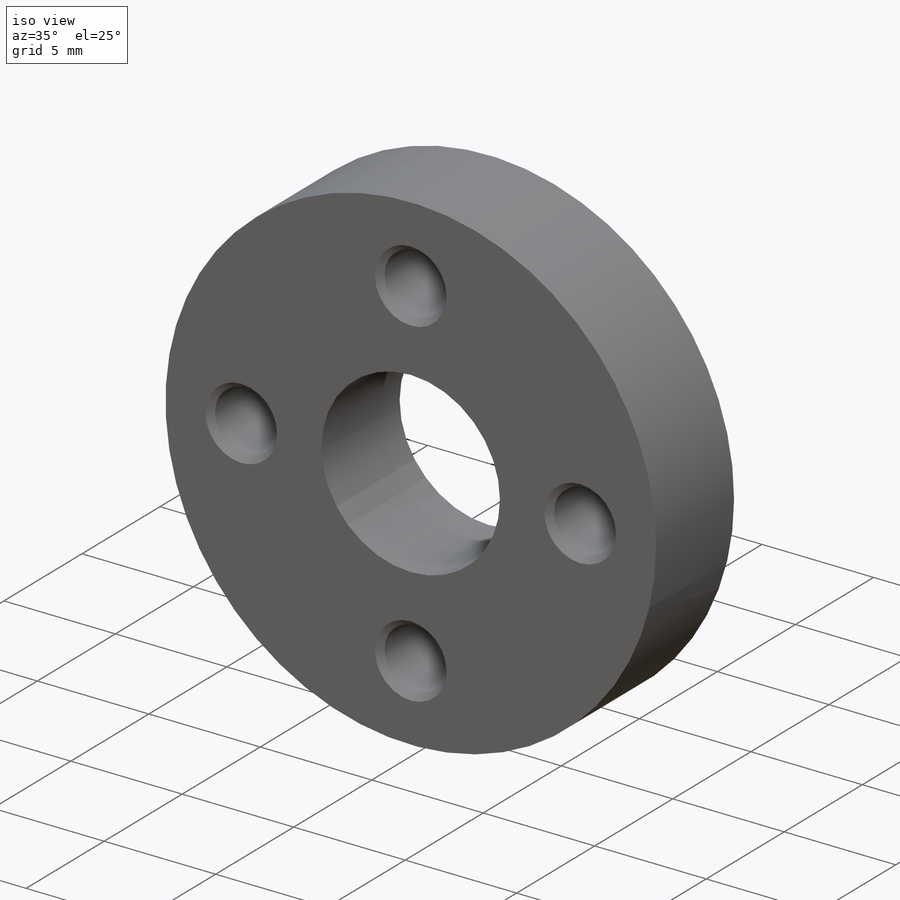
[diagram: iso view]
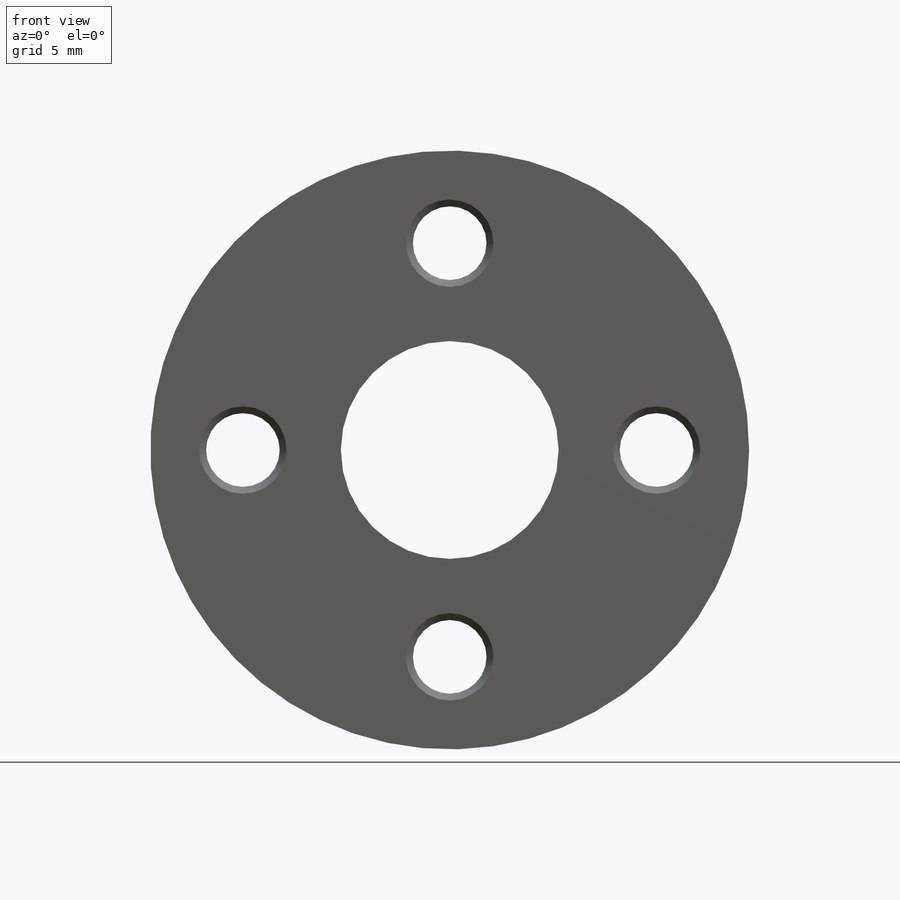
[diagram: front view]
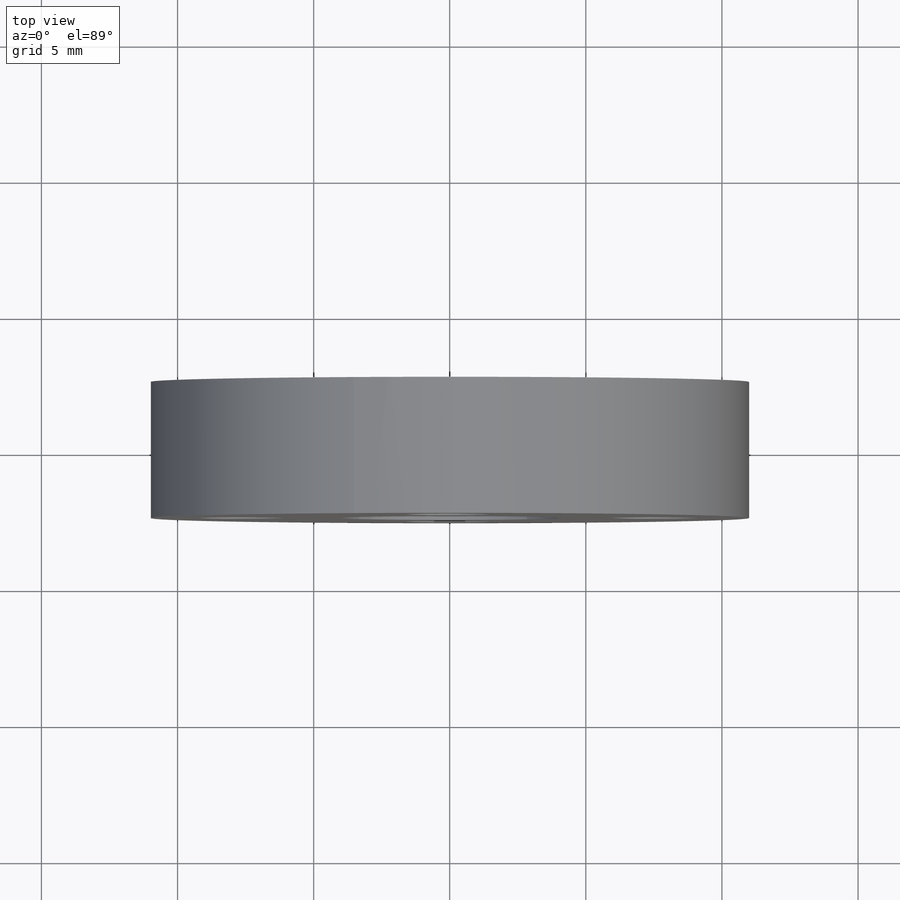
[diagram: top view]
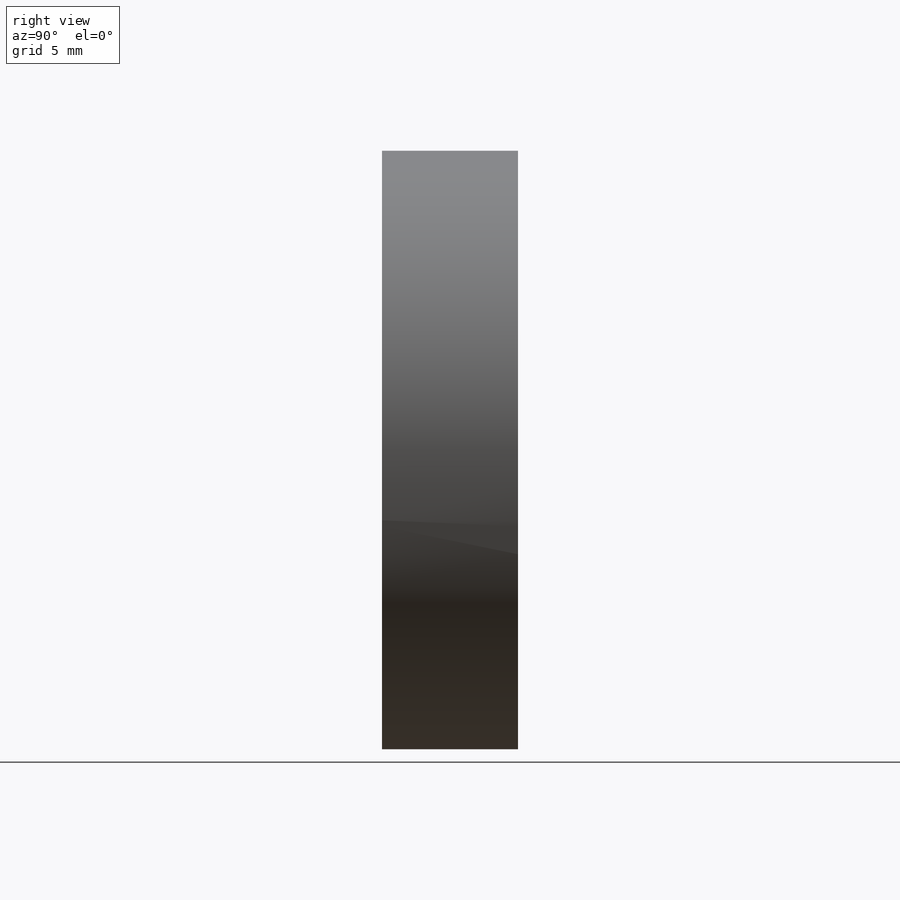
[diagram: right view]
SOLIDWORKS PART (.sldprt)
format: sldprt  version: not decoded by parser v0  size: 289,280 bytes
history: native  units: mm
features: sketch x6, thread x5, hole x2, chamfer x2, material x1, extrude x1, cut_extrude x1 (+17 scaffold rows collapsed)
feature tree (35):
  scaffold x17  (default folders/planes/origin — collapsed)
  material  "6061-T6 (SS)"
  sketch  "Sketch1"  dims[D1=22.0mm]
  extrude  "Extrude1"  Depth=5mm
  sketch  "Sketch2"  dims[D1=8.0mm]
  hole  "#6-32 Tapped Hole3"  Diameter=2.7051mm Depth=5mm
  sketch  "3DSketch4"  dims[D1=8.0mm D2=8.0mm D3=8.0mm D4=8.0mm]
  sketch  "Sketch7"  dims[hole-wizard template sketch: 60 standard entries collapsed; hole parameters kept: c18.Thru Tap Drill Depth=5.0mm]
  thread  "Hole Thread4"  Diameter=3.5052mm  [1 undecoded]
  thread  "Hole Thread5"  Diameter=3.5052mm  [1 undecoded]
  thread  "Hole Thread6"  Diameter=3.5052mm  [1 undecoded]
  thread  "Hole Thread7"  Diameter=3.5052mm  [1 undecoded]
  hole  "#10-32 Tapped Hole2"  Diameter=4.0386mm Depth=11.5824mm
  sketch  "3DSketch7"
  sketch  "Sketch12"  dims[hole-wizard template sketch: 47 standard entries collapsed; hole parameters kept: c15.Tap Drill Depth=11.5824mm c15.D3=~14.816244mm c15.Drill Angle=118.0deg]
  thread  "Hole Thread9"  Diameter=9.612582mm  [1 undecoded]
  chamfer  "Chamfer1"  Distance=0.254mm Angle=45deg
  chamfer  "Chamfer4"  Distance=0.254mm Angle=45deg
  cut_extrude  "Extrude2"  [1 undecoded]
decode coverage: 15 of 17 modeling features carry decoded parameters
note: ~ marks probable driven/reference dimensions
note: 6 parameter values undecoded
note: suppression state not decoded; provenance and decode notes live in map.json
